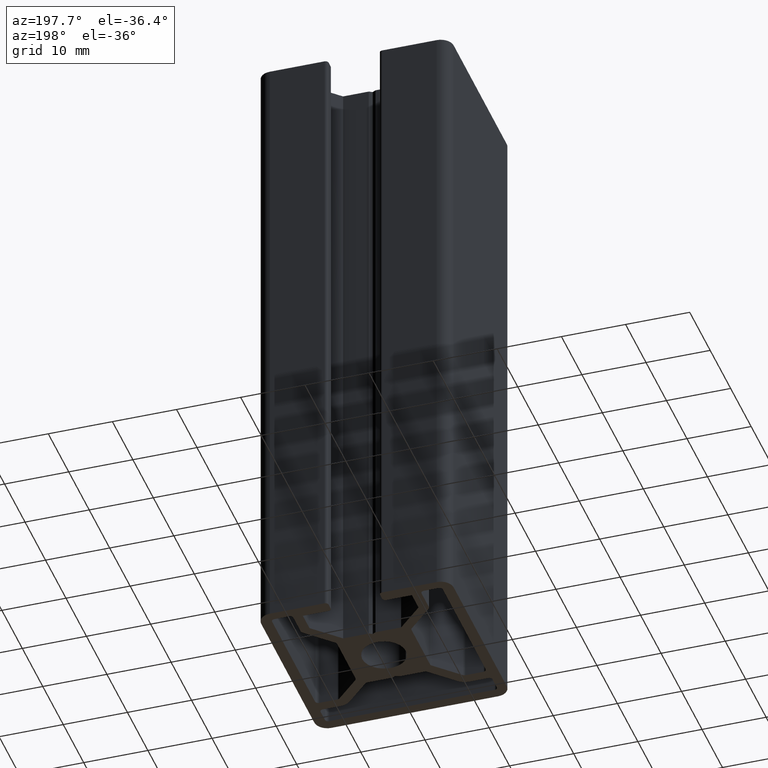
[diagram: clean part render]
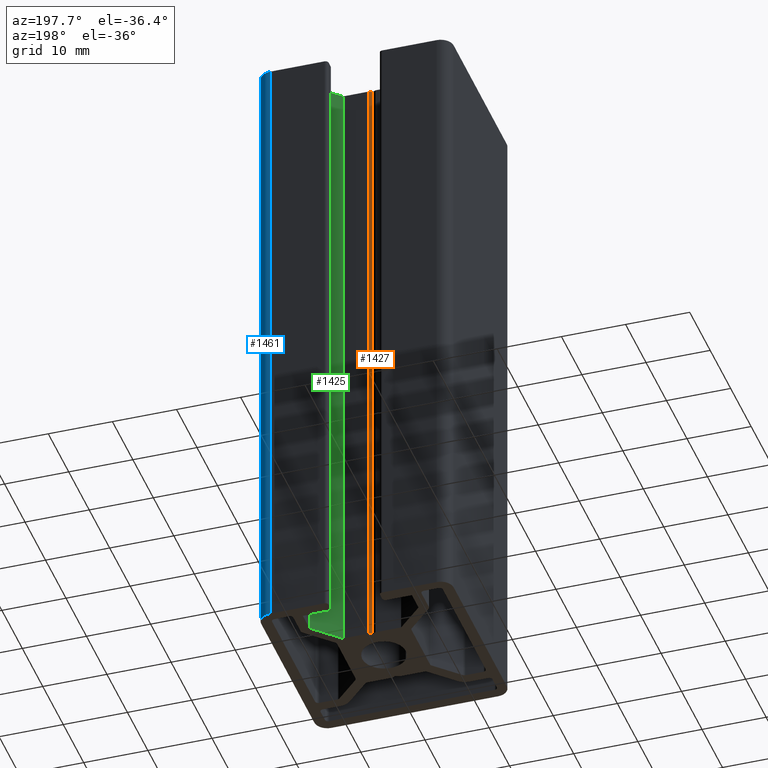
[diagram: same view with three faces highlighted in distinct colors, each labeled with its STEP entity id]
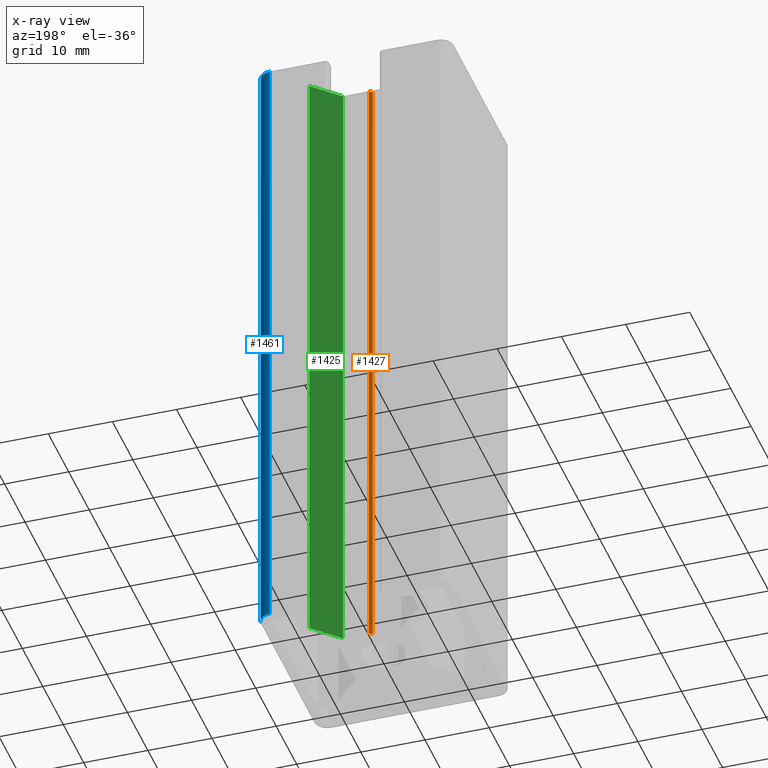
[diagram: x-ray of the same camera — body ghosted, the three highlighted faces saturated]
A machine part, auxiliary view with three faces highlighted in distinct colors.
The next image is the same camera in x-ray (body ghosted, the three faces saturated) — at least one of them is partly hidden behind the body in this view.
Their STEP definitions:

[orange] entity #1427 — the highlighted planar face has unit normal (0.5, -0.866, 0).
#142=FACE_OUTER_BOUND('',#215,.T.);
#215=EDGE_LOOP('',(#1052,#1053,#1054,#1055));
#340=LINE('',#2212,#494);
#341=LINE('',#2215,#495);
#342=LINE('',#2217,#496);
#343=LINE('',#2218,#497);
#494=VECTOR('',#1780,100.);
#495=VECTOR('',#1783,0.599999995678476);
#496=VECTOR('',#1784,0.599999995678476);
#497=VECTOR('',#1785,100.);
#638=VERTEX_POINT('',#2208);
#639=VERTEX_POINT('',#2210);
#640=VERTEX_POINT('',#2214);
#641=VERTEX_POINT('',#2216);
#810=EDGE_CURVE('',#639,#638,#340,.T.);
#811=EDGE_CURVE('',#638,#640,#341,.T.);
#812=EDGE_CURVE('',#641,#639,#342,.T.);
#813=EDGE_CURVE('',#641,#640,#343,.T.);
#1052=ORIENTED_EDGE('',*,*,#811,.F.);
#1053=ORIENTED_EDGE('',*,*,#810,.F.);
#1054=ORIENTED_EDGE('',*,*,#812,.F.);
#1055=ORIENTED_EDGE('',*,*,#813,.T.);
#1373=PLANE('',#1522);
#1427=ADVANCED_FACE('',(#142),#1373,.F.);
#1522=AXIS2_PLACEMENT_3D('',#2213,#1781,#1782);
#1780=DIRECTION('',(0.,0.,1.));
#1781=DIRECTION('center_axis',(0.499999995750946,-0.866025406237631,0.));
#1782=DIRECTION('ref_axis',(0.,0.,-1.));
#1783=DIRECTION('',(-0.866025406237631,-0.499999995750946,0.));
#1784=DIRECTION('',(0.866025406237631,0.499999995750946,0.));
#1785=DIRECTION('',(0.,0.,1.));
#2208=CARTESIAN_POINT('',(0.519615272405787,5.80000000218334,100.));
#2210=CARTESIAN_POINT('',(0.519615272405787,5.80000000218334,0.));
#2212=CARTESIAN_POINT('',(0.519615272405787,5.80000000218334,0.));
#2213=CARTESIAN_POINT('Origin',(0.519615272405787,5.80000000218334,0.));
#2214=CARTESIAN_POINT('',(3.24057574351E-8,5.50000000689353,100.));
#2215=CARTESIAN_POINT('',(-0.930977284611883,4.96250000839427,100.));
#2216=CARTESIAN_POINT('',(3.24057574351E-8,5.50000000689353,0.));
#2217=CARTESIAN_POINT('',(-0.930977284611883,4.96250000839427,0.));
#2218=CARTESIAN_POINT('',(3.24057574351E-8,5.50000000689353,0.));

[blue] entity #1461 — the highlighted cylindrical surface (edge-blend (fillet) strip) has radius 2 mm, axis along (0, 0, 1).
#77=CIRCLE('',#1588,2.00000000847673);
#78=CIRCLE('',#1591,2.00000000847673);
#107=CYLINDRICAL_SURFACE('',#1590,2.00000000847673);
#176=FACE_OUTER_BOUND('',#254,.T.);
#254=EDGE_LOOP('',(#1253,#1254,#1255,#1256));
#409=LINE('',#2419,#563);
#411=LINE('',#2423,#565);
#563=VECTOR('',#1985,100.);
#565=VECTOR('',#1989,100.);
#707=VERTEX_POINT('',#2412);
#708=VERTEX_POINT('',#2414);
#709=VERTEX_POINT('',#2418);
#710=VERTEX_POINT('',#2422);
#911=EDGE_CURVE('',#708,#707,#77,.T.);
#913=EDGE_CURVE('',#709,#708,#409,.T.);
#915=EDGE_CURVE('',#710,#707,#411,.T.);
#916=EDGE_CURVE('',#709,#710,#78,.T.);
#1253=ORIENTED_EDGE('',*,*,#911,.T.);
#1254=ORIENTED_EDGE('',*,*,#915,.F.);
#1255=ORIENTED_EDGE('',*,*,#916,.F.);
#1256=ORIENTED_EDGE('',*,*,#913,.T.);
#1461=ADVANCED_FACE('',(#176),#107,.T.);
#1588=AXIS2_PLACEMENT_3D('',#2415,#1980,#1981);
#1590=AXIS2_PLACEMENT_3D('',#2421,#1987,#1988);
#1591=AXIS2_PLACEMENT_3D('',#2424,#1990,#1991);
#1980=DIRECTION('center_axis',(0.,0.,-1.));
#1981=DIRECTION('ref_axis',(-1.,3.84254848573491E-10,0.));
#1985=DIRECTION('',(0.,0.,1.));
#1987=DIRECTION('center_axis',(0.,0.,1.));
#1988=DIRECTION('ref_axis',(-1.,3.84254848573491E-10,0.));
#1989=DIRECTION('',(0.,0.,1.));
#1990=DIRECTION('center_axis',(0.,0.,-1.));
#1991=DIRECTION('ref_axis',(-1.,3.84254848573491E-10,0.));
#2412=CARTESIAN_POINT('',(14.9999999992264,12.9999999868977,100.));
#2414=CARTESIAN_POINT('',(12.9999999917377,14.9999999959286,100.));
#2415=CARTESIAN_POINT('Origin',(12.9999999909641,12.9999999876662,100.));
#2418=CARTESIAN_POINT('',(12.9999999917377,14.9999999959286,0.));
#2419=CARTESIAN_POINT('',(12.9999999917377,14.9999999959286,0.));
#2421=CARTESIAN_POINT('Origin',(12.9999999909641,12.9999999876662,0.));
#2422=CARTESIAN_POINT('',(14.9999999992264,12.9999999868977,0.));
#2423=CARTESIAN_POINT('',(14.9999999992264,12.9999999868977,0.));
#2424=CARTESIAN_POINT('Origin',(12.9999999909641,12.9999999876662,0.));

[green] entity #1425 — the highlighted planar face has unit normal (0.7071, -0.7071, 0).
#140=FACE_OUTER_BOUND('',#213,.T.);
#213=EDGE_LOOP('',(#1044,#1045,#1046,#1047));
#334=LINE('',#2200,#488);
#335=LINE('',#2203,#489);
#336=LINE('',#2205,#490);
#337=LINE('',#2206,#491);
#488=VECTOR('',#1770,100.);
#489=VECTOR('',#1773,5.6183766168011);
#490=VECTOR('',#1774,5.6183766168011);
#491=VECTOR('',#1775,100.);
#634=VERTEX_POINT('',#2196);
#635=VERTEX_POINT('',#2198);
#636=VERTEX_POINT('',#2202);
#637=VERTEX_POINT('',#2204);
#804=EDGE_CURVE('',#635,#634,#334,.T.);
#805=EDGE_CURVE('',#634,#636,#335,.T.);
#806=EDGE_CURVE('',#637,#635,#336,.T.);
#807=EDGE_CURVE('',#637,#636,#337,.T.);
#1044=ORIENTED_EDGE('',*,*,#805,.F.);
#1045=ORIENTED_EDGE('',*,*,#804,.F.);
#1046=ORIENTED_EDGE('',*,*,#806,.F.);
#1047=ORIENTED_EDGE('',*,*,#807,.T.);
#1371=PLANE('',#1520);
#1425=ADVANCED_FACE('',(#140),#1371,.F.);
#1520=AXIS2_PLACEMENT_3D('',#2201,#1771,#1772);
#1770=DIRECTION('',(0.,0.,1.));
#1771=DIRECTION('center_axis',(0.707106781189888,-0.707106781183207,0.));
#1772=DIRECTION('ref_axis',(0.,0.,-1.));
#1773=DIRECTION('',(-0.707106781183207,-0.707106781189888,0.));
#1774=DIRECTION('',(0.707106781183207,0.707106781189888,0.));
#1775=DIRECTION('',(0.,0.,1.));
#2196=CARTESIAN_POINT('',(8.50000004229958,9.77279220720203,100.));
#2198=CARTESIAN_POINT('',(8.50000004229958,9.77279220720203,0.));
#2200=CARTESIAN_POINT('',(8.50000004229958,9.77279220720203,0.));
#2201=CARTESIAN_POINT('Origin',(8.50000004229958,9.77279220720203,0.));
#2202=CARTESIAN_POINT('',(4.52720783731836,5.80000000218326,100.));
#2203=CARTESIAN_POINT('',(3.93180198004162,5.2045941449009,100.));
#2204=CARTESIAN_POINT('',(4.52720783731836,5.80000000218326,0.));
#2205=CARTESIAN_POINT('',(3.93180198004162,5.2045941449009,0.));
#2206=CARTESIAN_POINT('',(4.52720783731836,5.80000000218326,0.));